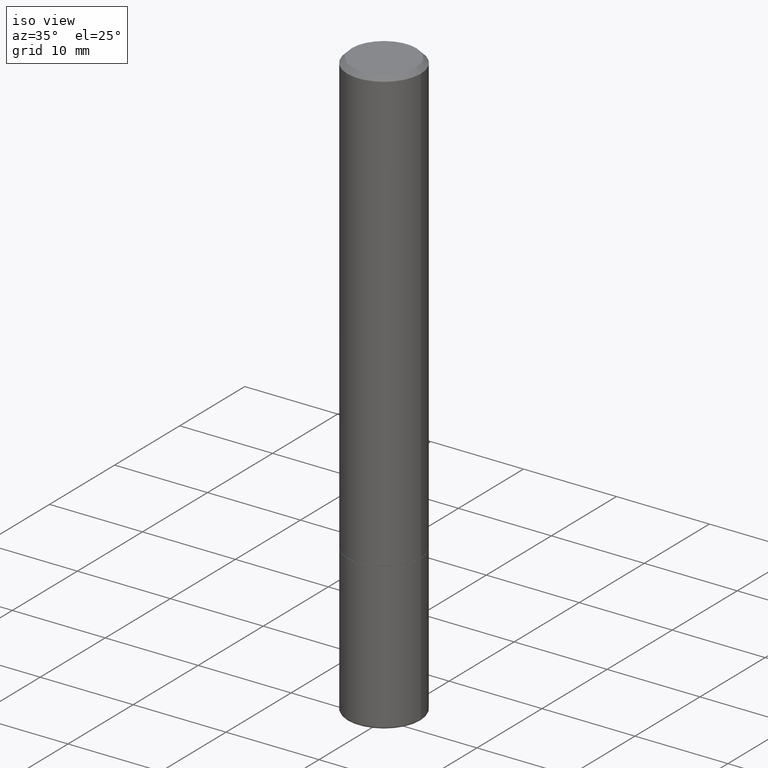
[diagram: clean part render]
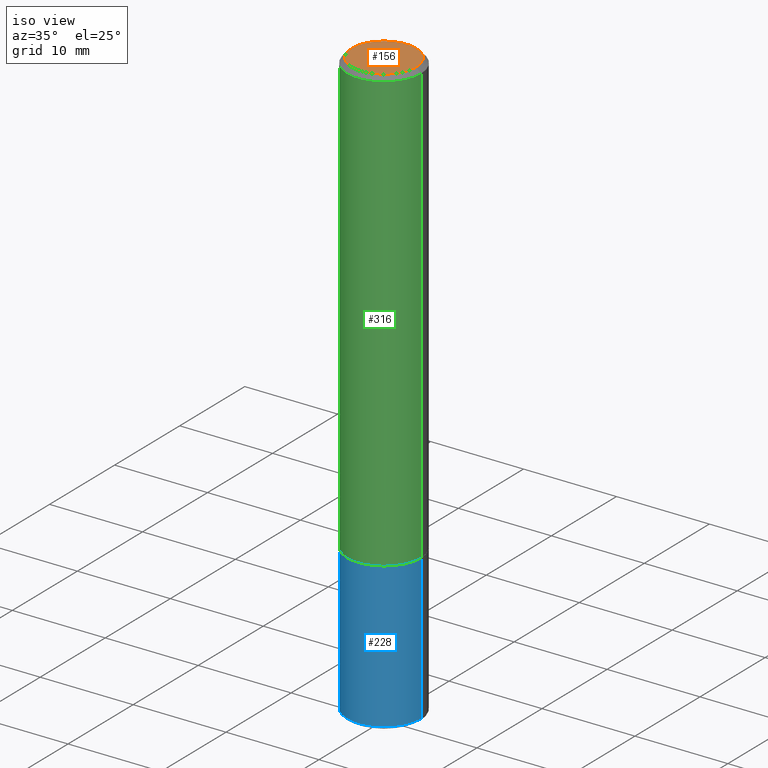
[diagram: same view with three faces highlighted in distinct colors, each labeled with its STEP entity id]
A machine part, iso view with three faces highlighted in distinct colors.
Their STEP definitions:

[orange] entity #156 — the highlighted planar face has unit normal (0, -0, -1).
#18 = CARTESIAN_POINT ( 'NONE',  ( 0.000000000000000000, 0.000000000000000000, 0.000000000000000000 ) ) ;
#25 = DIRECTION ( 'NONE',  ( 1.000000000000000000, -6.982962677686266711E-15, 4.876176775795936353E-29 ) ) ;
#32 = CARTESIAN_POINT ( 'NONE',  ( 9.514286648347541549E-16, 0.1362500000000000377, -4.757143324173787538E-16 ) ) ;
#33 = EDGE_CURVE ( 'NONE', #278, #304, #107, .T. ) ;
#34 = AXIS2_PLACEMENT_3D ( 'NONE', #32, #230, #67 ) ;
#56 = DIRECTION ( 'NONE',  ( -2.445468806185136597E-29, 3.491481338843145583E-15, 1.000000000000000000 ) ) ;
#67 = DIRECTION ( 'NONE',  ( -1.000000000000000000, 6.982962677686265922E-15, -4.876176775795935793E-29 ) ) ;
#83 = EDGE_CURVE ( 'NONE', #304, #278, #116, .T. ) ;
#107 = CIRCLE ( 'NONE', #153, 0.1362500000000000377 ) ;
#116 = CIRCLE ( 'NONE', #320, 0.1362500000000000377 ) ;
#134 = CARTESIAN_POINT ( 'NONE',  ( -0.1362500000000000377, 9.863434782231852123E-16, -6.775751096333141285E-30 ) ) ;
#153 = AXIS2_PLACEMENT_3D ( 'NONE', #244, #56, #314 ) ;
#156 = ADVANCED_FACE ( 'NONE', ( #259 ), #354, .F. ) ;
#209 = ORIENTED_EDGE ( 'NONE', *, *, #33, .T. ) ;
#230 = DIRECTION ( 'NONE',  ( 2.438088387897960049E-29, -3.491481338843145188E-15, -1.000000000000000000 ) ) ;
#235 = EDGE_LOOP ( 'NONE', ( #395, #209 ) ) ;
#239 = CARTESIAN_POINT ( 'NONE',  ( 0.1362500000000000377, -1.038262645562518322E-15, 6.957025900226697878E-30 ) ) ;
#244 = CARTESIAN_POINT ( 'NONE',  ( 0.000000000000000000, 0.000000000000000000, 0.000000000000000000 ) ) ;
#259 = FACE_OUTER_BOUND ( 'NONE', #235, .T. ) ;
#278 = VERTEX_POINT ( 'NONE', #239 ) ;
#304 = VERTEX_POINT ( 'NONE', #134 ) ;
#314 = DIRECTION ( 'NONE',  ( 1.000000000000000000, -6.982962677686266711E-15, 4.876176775795936353E-29 ) ) ;
#320 = AXIS2_PLACEMENT_3D ( 'NONE', #18, #339, #25 ) ;
#339 = DIRECTION ( 'NONE',  ( -2.445468806185136597E-29, 3.491481338843145583E-15, 1.000000000000000000 ) ) ;
#354 = PLANE ( 'NONE',  #34 ) ;
#395 = ORIENTED_EDGE ( 'NONE', *, *, #83, .T. ) ;

[blue] entity #228 — the highlighted cylindrical surface (partial cylindrical patch) has radius 3.9688 mm, axis along (-0, 0, 1).
#5 = AXIS2_PLACEMENT_3D ( 'NONE', #303, #242, #9 ) ;
#7 = ORIENTED_EDGE ( 'NONE', *, *, #260, .T. ) ;
#9 = DIRECTION ( 'NONE',  ( 1.000000000000000000, -6.982962677686266711E-15, 4.876176775795936353E-29 ) ) ;
#14 = DIRECTION ( 'NONE',  ( -2.445468806185136597E-29, 3.491481338843145583E-15, 1.000000000000000000 ) ) ;
#16 = VERTEX_POINT ( 'NONE', #61 ) ;
#47 = CARTESIAN_POINT ( 'NONE',  ( 0.1562500000000000000, -1.091087918388479174E-15, 7.619026212181150377E-30 ) ) ;
#61 = CARTESIAN_POINT ( 'NONE',  ( 0.1562500000000000000, -7.637615428719378669E-15, -1.875000000000000000 ) ) ;
#75 = AXIS2_PLACEMENT_3D ( 'NONE', #334, #268, #265 ) ;
#82 = CYLINDRICAL_SURFACE ( 'NONE', #5, 0.1562500000000000000 ) ;
#89 = DIRECTION ( 'NONE',  ( 1.000000000000000000, -6.982962677686269077E-15, 0.000000000000000000 ) ) ;
#108 = LINE ( 'NONE', #253, #330 ) ;
#135 = VERTEX_POINT ( 'NONE', #416 ) ;
#138 = VERTEX_POINT ( 'NONE', #222 ) ;
#157 = FACE_OUTER_BOUND ( 'NONE', #199, .T. ) ;
#174 = LINE ( 'NONE', #47, #283 ) ;
#188 = AXIS2_PLACEMENT_3D ( 'NONE', #198, #14, #89 ) ;
#198 = CARTESIAN_POINT ( 'NONE',  ( 4.585254011597131119E-29, -6.546527510330898707E-15, -1.875000000000000000 ) ) ;
#199 = EDGE_LOOP ( 'NONE', ( #405, #392, #7, #266 ) ) ;
#222 = CARTESIAN_POINT ( 'NONE',  ( 0.1562499999999998612, -9.784876452107911678E-15, -2.489999999999999769 ) ) ;
#228 = ADVANCED_FACE ( 'NONE', ( #157 ), #82, .T. ) ;
#234 = DIRECTION ( 'NONE',  ( -2.445468806185136877E-29, 3.491481338843145188E-15, 1.000000000000000000 ) ) ;
#242 = DIRECTION ( 'NONE',  ( -2.445468806185136597E-29, 3.491481338843145583E-15, 1.000000000000000000 ) ) ;
#253 = CARTESIAN_POINT ( 'NONE',  ( -0.1562500000000000000, 1.110223024625156540E-15, -7.685836078523291160E-30 ) ) ;
#260 = EDGE_CURVE ( 'NONE', #138, #16, #174, .T. ) ;
#265 = DIRECTION ( 'NONE',  ( 1.000000000000000000, -6.982962677686270655E-15, 0.000000000000000000 ) ) ;
#266 = ORIENTED_EDGE ( 'NONE', *, *, #274, .F. ) ;
#268 = DIRECTION ( 'NONE',  ( -2.445468806185136597E-29, 3.491481338843145583E-15, 1.000000000000000000 ) ) ;
#274 = EDGE_CURVE ( 'NONE', #135, #16, #315, .T. ) ;
#283 = VECTOR ( 'NONE', #234, 39.37007874015748143 ) ;
#284 = EDGE_CURVE ( 'NONE', #329, #138, #403, .T. ) ;
#287 = DIRECTION ( 'NONE',  ( -2.445468806185136877E-29, 3.491481338843145188E-15, 1.000000000000000000 ) ) ;
#303 = CARTESIAN_POINT ( 'NONE',  ( 0.000000000000000000, 0.000000000000000000, 0.000000000000000000 ) ) ;
#315 = CIRCLE ( 'NONE', #188, 0.1562500000000000000 ) ;
#329 = VERTEX_POINT ( 'NONE', #393 ) ;
#330 = VECTOR ( 'NONE', #287, 39.37007874015748143 ) ;
#334 = CARTESIAN_POINT ( 'NONE',  ( 6.089217327400989947E-29, -8.693788533719431716E-15, -2.489999999999999769 ) ) ;
#352 = EDGE_CURVE ( 'NONE', #329, #135, #108, .T. ) ;
#392 = ORIENTED_EDGE ( 'NONE', *, *, #284, .T. ) ;
#393 = CARTESIAN_POINT ( 'NONE',  ( -0.1562499999999998612, -7.583565509094276753E-15, -2.489999999999999769 ) ) ;
#403 = CIRCLE ( 'NONE', #75, 0.1562499999999999722 ) ;
#405 = ORIENTED_EDGE ( 'NONE', *, *, #352, .F. ) ;
#416 = CARTESIAN_POINT ( 'NONE',  ( -0.1562500000000000000, -6.509934997400009460E-15, -1.875000000000000000 ) ) ;

[green] entity #316 — the highlighted cylindrical surface (partial cylindrical patch) has radius 3.9688 mm, axis along (-0, 0, 1).
#3 = EDGE_CURVE ( 'NONE', #193, #10, #168, .T. ) ;
#10 = VERTEX_POINT ( 'NONE', #342 ) ;
#15 = EDGE_CURVE ( 'NONE', #264, #85, #410, .T. ) ;
#21 = DIRECTION ( 'NONE',  ( -2.445468806185136597E-29, 3.491481338843145583E-15, 1.000000000000000000 ) ) ;
#30 = CARTESIAN_POINT ( 'NONE',  ( 0.1562500000000001388, -1.091087918388480160E-15, 7.619026212181157383E-30 ) ) ;
#44 = CARTESIAN_POINT ( 'NONE',  ( -0.1562500000000002220, -2.196209803259299803E-15, -1.874000000000000110 ) ) ;
#85 = VERTEX_POINT ( 'NONE', #121 ) ;
#101 = DIRECTION ( 'NONE',  ( -2.445468806185136877E-29, 3.491481338843145188E-15, 1.000000000000000000 ) ) ;
#102 = AXIS2_PLACEMENT_3D ( 'NONE', #407, #117, #383 ) ;
#111 = CYLINDRICAL_SURFACE ( 'NONE', #145, 0.1562500000000001388 ) ;
#115 = CARTESIAN_POINT ( 'NONE',  ( 0.000000000000000000, 0.000000000000000000, 0.000000000000000000 ) ) ;
#117 = DIRECTION ( 'NONE',  ( -2.445468806185136597E-29, 3.491481338843145583E-15, 1.000000000000000000 ) ) ;
#121 = CARTESIAN_POINT ( 'NONE',  ( 0.1562500000000002220, -7.634123947380535662E-15, -1.874000000000000110 ) ) ;
#136 = FACE_OUTER_BOUND ( 'NONE', #197, .T. ) ;
#145 = AXIS2_PLACEMENT_3D ( 'NONE', #115, #172, #396 ) ;
#146 = ORIENTED_EDGE ( 'NONE', *, *, #177, .T. ) ;
#162 = ORIENTED_EDGE ( 'NONE', *, *, #3, .F. ) ;
#168 = CIRCLE ( 'NONE', #102, 0.1562500000000000278 ) ;
#172 = DIRECTION ( 'NONE',  ( -2.445468806185136597E-29, 3.491481338843145583E-15, 1.000000000000000000 ) ) ;
#177 = EDGE_CURVE ( 'NONE', #85, #10, #317, .T. ) ;
#178 = DIRECTION ( 'NONE',  ( -2.445468806185136877E-29, 3.491481338843145188E-15, 1.000000000000000000 ) ) ;
#193 = VERTEX_POINT ( 'NONE', #350 ) ;
#197 = EDGE_LOOP ( 'NONE', ( #397, #273, #146, #162 ) ) ;
#246 = CARTESIAN_POINT ( 'NONE',  ( 4.582808542790945516E-29, -6.543036028992054911E-15, -1.874000000000000110 ) ) ;
#249 = AXIS2_PLACEMENT_3D ( 'NONE', #246, #21, #402 ) ;
#264 = VERTEX_POINT ( 'NONE', #44 ) ;
#273 = ORIENTED_EDGE ( 'NONE', *, *, #15, .T. ) ;
#286 = LINE ( 'NONE', #415, #374 ) ;
#316 = ADVANCED_FACE ( 'NONE', ( #136 ), #111, .T. ) ;
#317 = LINE ( 'NONE', #30, #328 ) ;
#328 = VECTOR ( 'NONE', #101, 39.37007874015748143 ) ;
#342 = CARTESIAN_POINT ( 'NONE',  ( 0.1562500000000000278, -1.141782438928665105E-15, -0.02000000000000003511 ) ) ;
#350 = CARTESIAN_POINT ( 'NONE',  ( -0.1562500000000000278, 1.021258291611616467E-15, -0.02000000000000003511 ) ) ;
#374 = VECTOR ( 'NONE', #178, 39.37007874015748143 ) ;
#383 = DIRECTION ( 'NONE',  ( 1.000000000000000000, -6.982962677686266711E-15, 0.000000000000000000 ) ) ;
#386 = EDGE_CURVE ( 'NONE', #264, #193, #286, .T. ) ;
#396 = DIRECTION ( 'NONE',  ( 1.000000000000000000, -6.982962677686266711E-15, 4.876176775795936353E-29 ) ) ;
#397 = ORIENTED_EDGE ( 'NONE', *, *, #386, .F. ) ;
#402 = DIRECTION ( 'NONE',  ( 1.000000000000000000, -6.982962677686265922E-15, 0.000000000000000000 ) ) ;
#407 = CARTESIAN_POINT ( 'NONE',  ( 4.890937612370281041E-31, -6.982962677686302702E-17, -0.02000000000000003511 ) ) ;
#410 = CIRCLE ( 'NONE', #249, 0.1562500000000002220 ) ;
#415 = CARTESIAN_POINT ( 'NONE',  ( -0.1562500000000001388, 1.110223024625157526E-15, -7.685836078523296765E-30 ) ) ;